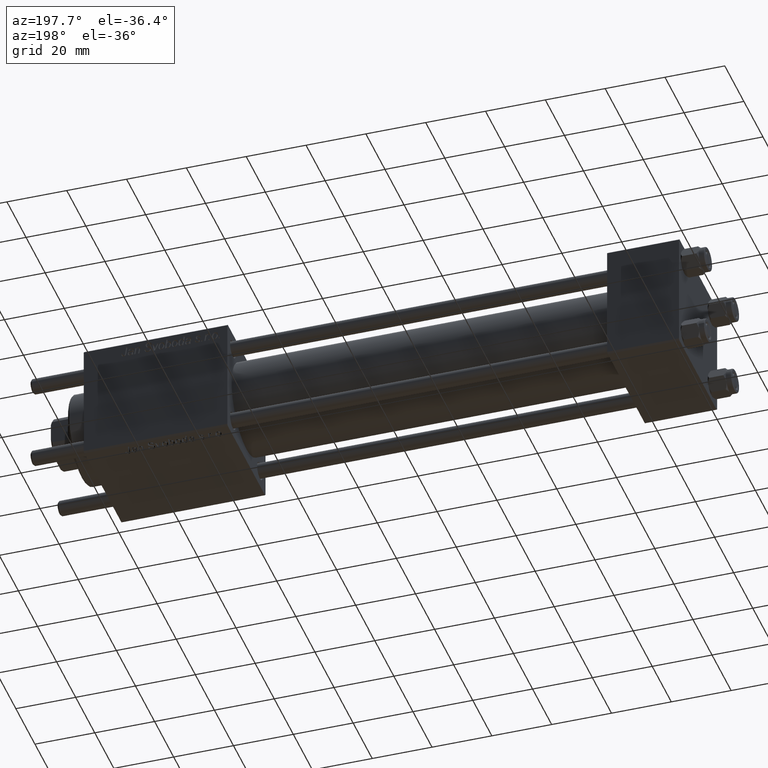
[diagram: clean part render]
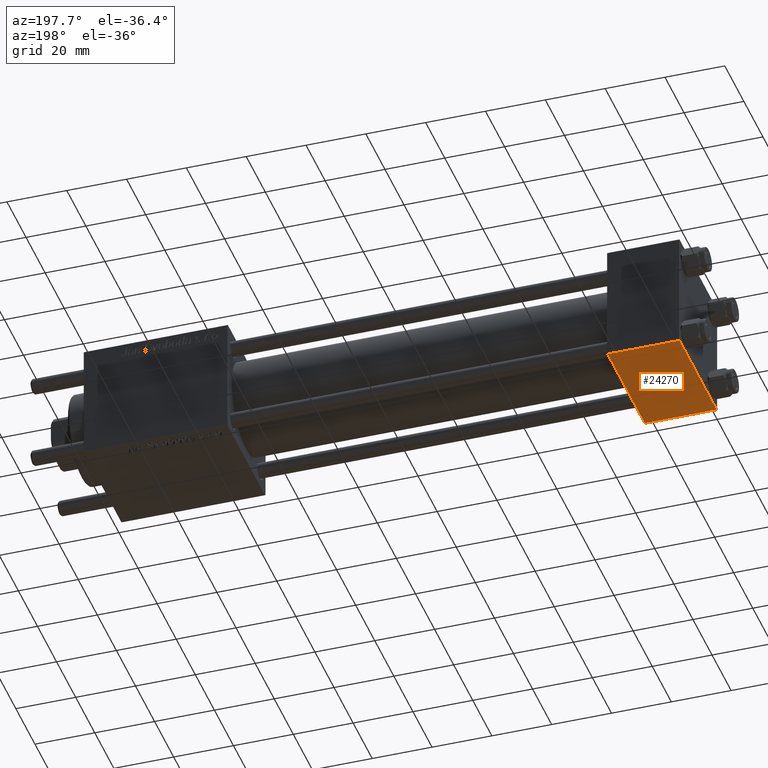
[diagram: same view with one face highlighted and labeled with its STEP entity id]
A machine part, auxiliary view. The second image highlights one B-rep face of the part: STEP entity #24270.
In plain terms, the highlighted planar face has unit normal (0, -0, -1).
Its self-contained STEP definition (entity closure, byte-faithful):
#375 = CARTESIAN_POINT ( 'NONE',  ( 0.000000000000000000, -19.50000000000000711, -20.00000000000000000 ) ) ;
#781 = AXIS2_PLACEMENT_3D ( 'NONE', #44558, #41096, #49690 ) ;
#2110 = EDGE_CURVE ( 'NONE', #12373, #17430, #39635, .T. ) ;
#3849 = CARTESIAN_POINT ( 'NONE',  ( 24.00000000000000000, 19.50000000000000711, -20.00000000000000711 ) ) ;
#5452 = VECTOR ( 'NONE', #27695, 1000.000000000000000 ) ;
#6021 = CARTESIAN_POINT ( 'NONE',  ( 0.000000000000000000, -19.50000000000000711, -20.00000000000000000 ) ) ;
#6850 = CARTESIAN_POINT ( 'NONE',  ( 0.000000000000000000, 19.50000000000000711, -20.00000000000000711 ) ) ;
#10484 = CARTESIAN_POINT ( 'NONE',  ( 24.00000000000000000, 19.50000000000000711, -20.00000000000000711 ) ) ;
#12373 = VERTEX_POINT ( 'NONE', #47008 ) ;
#15071 = DIRECTION ( 'NONE',  ( 1.000000000000000000, 0.000000000000000000, 0.000000000000000000 ) ) ;
#15900 = EDGE_CURVE ( 'NONE', #20027, #12373, #44047, .T. ) ;
#16090 = ORIENTED_EDGE ( 'NONE', *, *, #26974, .F. ) ;
#17430 = VERTEX_POINT ( 'NONE', #6021 ) ;
#18029 = EDGE_CURVE ( 'NONE', #20550, #20027, #48858, .T. ) ;
#20027 = VERTEX_POINT ( 'NONE', #3849 ) ;
#20550 = VERTEX_POINT ( 'NONE', #6850 ) ;
#22463 = VECTOR ( 'NONE', #30570, 1000.000000000000000 ) ;
#23040 = PLANE ( 'NONE',  #781 ) ;
#24270 = ADVANCED_FACE ( 'NONE', ( #32203 ), #23040, .T. ) ;
#26967 = EDGE_LOOP ( 'NONE', ( #16090, #53633, #50504, #31313 ) ) ;
#26974 = EDGE_CURVE ( 'NONE', #20550, #17430, #46044, .T. ) ;
#27695 = DIRECTION ( 'NONE',  ( 0.000000000000000000, -1.000000000000000000, 1.734723475976807094E-16 ) ) ;
#30570 = DIRECTION ( 'NONE',  ( 0.000000000000000000, -1.000000000000000000, 1.734723475976807094E-16 ) ) ;
#31313 = ORIENTED_EDGE ( 'NONE', *, *, #2110, .T. ) ;
#32203 = FACE_OUTER_BOUND ( 'NONE', #26967, .T. ) ;
#34972 = VECTOR ( 'NONE', #35333, 1000.000000000000000 ) ;
#35333 = DIRECTION ( 'NONE',  ( -1.000000000000000000, 0.000000000000000000, 0.000000000000000000 ) ) ;
#37441 = CARTESIAN_POINT ( 'NONE',  ( 0.000000000000000000, 20.00000000000000000, -20.00000000000000711 ) ) ;
#39635 = LINE ( 'NONE', #375, #34972 ) ;
#41096 = DIRECTION ( 'NONE',  ( 0.000000000000000000, -1.734723475976806848E-16, -1.000000000000000000 ) ) ;
#44047 = LINE ( 'NONE', #56396, #22463 ) ;
#44558 = CARTESIAN_POINT ( 'NONE',  ( 24.00000000000000000, 20.00000000000000000, -20.00000000000000711 ) ) ;
#46044 = LINE ( 'NONE', #37441, #5452 ) ;
#47008 = CARTESIAN_POINT ( 'NONE',  ( 24.00000000000000000, -19.50000000000000711, -20.00000000000000000 ) ) ;
#48858 = LINE ( 'NONE', #10484, #56342 ) ;
#49690 = DIRECTION ( 'NONE',  ( 0.000000000000000000, 1.000000000000000000, -1.734723475976806848E-16 ) ) ;
#50504 = ORIENTED_EDGE ( 'NONE', *, *, #15900, .T. ) ;
#53633 = ORIENTED_EDGE ( 'NONE', *, *, #18029, .T. ) ;
#56342 = VECTOR ( 'NONE', #15071, 1000.000000000000000 ) ;
#56396 = CARTESIAN_POINT ( 'NONE',  ( 24.00000000000000000, 20.00000000000000000, -20.00000000000000711 ) ) ;